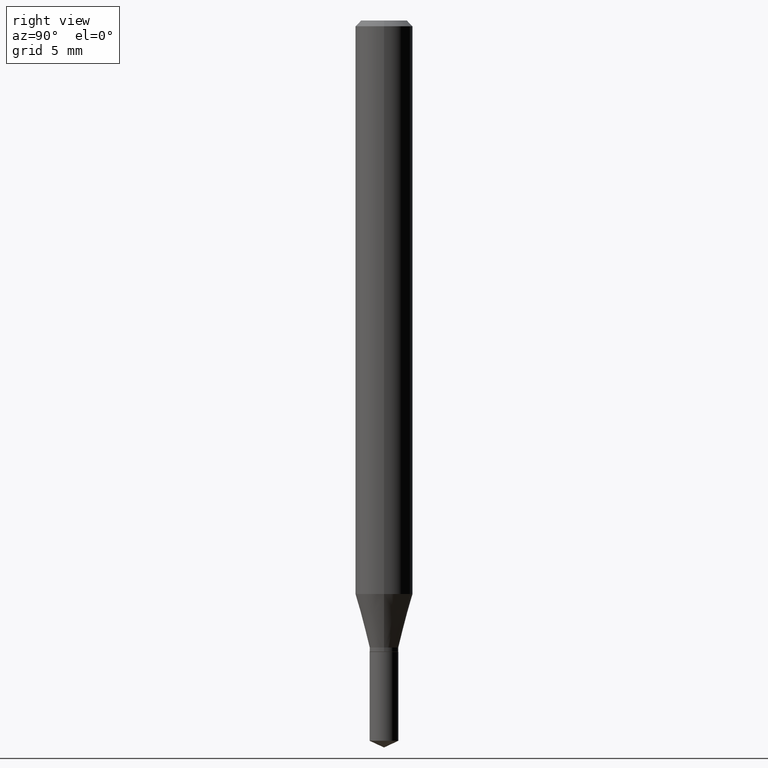
[diagram: clean part render]
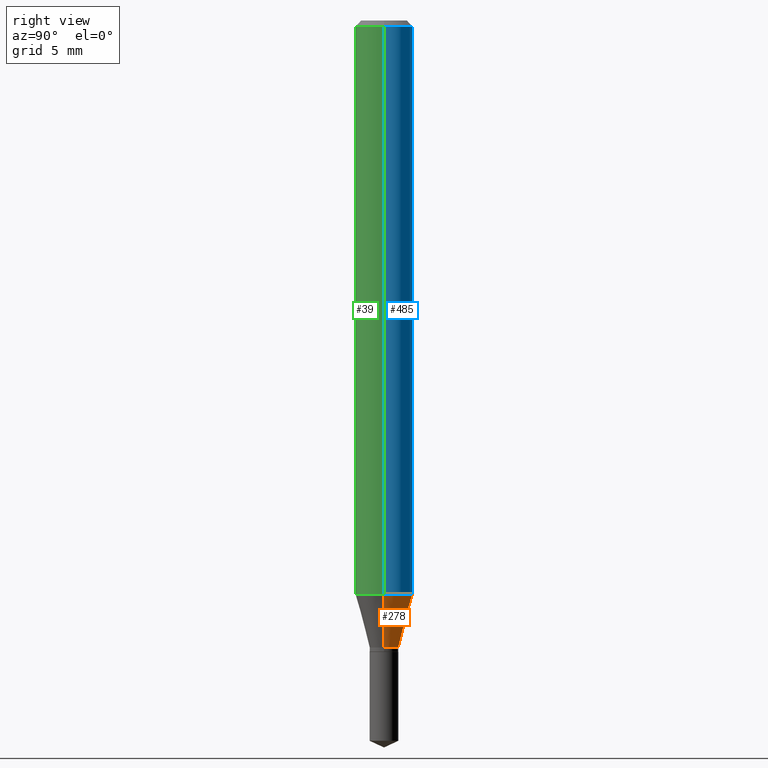
[diagram: same view with three faces highlighted in distinct colors, each labeled with its STEP entity id]
A machine part, right view with three faces highlighted in distinct colors.
Their STEP definitions:

[orange] entity #278 — the highlighted conical surface has half-angle 15 deg.
#13 = CIRCLE ( 'NONE', #93, 0.05905000000000014404 ) ;
#16 = CARTESIAN_POINT ( 'NONE',  ( -0.05905000000000014404, -3.701086506410853465E-15, -1.180204501176717713 ) ) ;
#18 = ORIENTED_EDGE ( 'NONE', *, *, #254, .F. ) ;
#20 = VECTOR ( 'NONE', #342, 39.37007874015747433 ) ;
#44 = AXIS2_PLACEMENT_3D ( 'NONE', #133, #358, #203 ) ;
#45 = CARTESIAN_POINT ( 'NONE',  ( 3.155388400620681599E-29, -4.505058371509310392E-15, -1.290300000000000002 ) ) ;
#48 = FACE_OUTER_BOUND ( 'NONE', #419, .T. ) ;
#93 = AXIS2_PLACEMENT_3D ( 'NONE', #297, #269, #452 ) ;
#100 = VERTEX_POINT ( 'NONE', #159 ) ;
#114 = VERTEX_POINT ( 'NONE', #272 ) ;
#118 = DIRECTION ( 'NONE',  ( -2.445468806185136597E-29, 3.491481338843145583E-15, 1.000000000000000000 ) ) ;
#133 = CARTESIAN_POINT ( 'NONE',  ( 3.155388400620681599E-29, -4.505058371509310392E-15, -1.290300000000000002 ) ) ;
#135 = VERTEX_POINT ( 'NONE', #175 ) ;
#151 = ORIENTED_EDGE ( 'NONE', *, *, #323, .F. ) ;
#159 = CARTESIAN_POINT ( 'NONE',  ( 0.05905000000000014404, -4.533005937994568667E-15, -1.180204501176717713 ) ) ;
#167 = ORIENTED_EDGE ( 'NONE', *, *, #449, .T. ) ;
#175 = CARTESIAN_POINT ( 'NONE',  ( -0.02954999999999998253, -4.309757214715342453E-15, -1.290300000000000002 ) ) ;
#190 = DIRECTION ( 'NONE',  ( 1.000000000000000000, -6.982962677686265922E-15, 0.000000000000000000 ) ) ;
#192 = LINE ( 'NONE', #220, #20 ) ;
#203 = DIRECTION ( 'NONE',  ( 1.000000000000000000, -6.982962677686265922E-15, 0.000000000000000000 ) ) ;
#220 = CARTESIAN_POINT ( 'NONE',  ( -0.02954999999999998253, -4.295092993092201035E-15, -1.290300000000000002 ) ) ;
#223 = CARTESIAN_POINT ( 'NONE',  ( 0.02954999999999998253, -4.711404918634939214E-15, -1.290300000000000002 ) ) ;
#228 = VECTOR ( 'NONE', #302, 39.37007874015747433 ) ;
#254 = EDGE_CURVE ( 'NONE', #114, #100, #382, .T. ) ;
#269 = DIRECTION ( 'NONE',  ( -2.445468806185136597E-29, 3.491481338843145583E-15, 1.000000000000000000 ) ) ;
#272 = CARTESIAN_POINT ( 'NONE',  ( 0.02954999999999998253, -4.711404918634939214E-15, -1.290300000000000002 ) ) ;
#278 = ADVANCED_FACE ( 'NONE', ( #48 ), #404, .T. ) ;
#285 = EDGE_CURVE ( 'NONE', #135, #434, #192, .T. ) ;
#294 = AXIS2_PLACEMENT_3D ( 'NONE', #45, #118, #190 ) ;
#297 = CARTESIAN_POINT ( 'NONE',  ( 2.886153292546952505E-29, -4.120661991877192958E-15, -1.180204501176717713 ) ) ;
#302 = DIRECTION ( 'NONE',  ( 0.2588190451025214611, 1.565188264969621573E-15, 0.9659258262890682012 ) ) ;
#323 = EDGE_CURVE ( 'NONE', #100, #434, #13, .T. ) ;
#342 = DIRECTION ( 'NONE',  ( -0.2588190451025214611, 5.211531920934551042E-15, 0.9659258262890682012 ) ) ;
#358 = DIRECTION ( 'NONE',  ( -2.445468806185136597E-29, 3.491481338843145583E-15, 1.000000000000000000 ) ) ;
#381 = CIRCLE ( 'NONE', #44, 0.02954999999999998253 ) ;
#382 = LINE ( 'NONE', #223, #228 ) ;
#404 = CONICAL_SURFACE ( 'NONE', #294, 0.02954999999999998253, 0.2617993877991501295 ) ;
#419 = EDGE_LOOP ( 'NONE', ( #167, #451, #151, #18 ) ) ;
#434 = VERTEX_POINT ( 'NONE', #16 ) ;
#449 = EDGE_CURVE ( 'NONE', #114, #135, #381, .T. ) ;
#451 = ORIENTED_EDGE ( 'NONE', *, *, #285, .T. ) ;
#452 = DIRECTION ( 'NONE',  ( 1.000000000000000000, -6.982962677686272233E-15, 0.000000000000000000 ) ) ;

[blue] entity #485 — the highlighted cylindrical surface (edge-blend (fillet) strip) has radius 1.4999 mm, axis along (-0, 0, 1).
#8 = EDGE_CURVE ( 'NONE', #100, #326, #79, .T. ) ;
#13 = CIRCLE ( 'NONE', #93, 0.05905000000000014404 ) ;
#14 = CARTESIAN_POINT ( 'NONE',  ( -0.05905000000000006771, 4.195754854663396409E-16, -2.904631170795525045E-30 ) ) ;
#16 = CARTESIAN_POINT ( 'NONE',  ( -0.05905000000000014404, -3.701086506410853465E-15, -1.180204501176717713 ) ) ;
#79 = LINE ( 'NONE', #231, #487 ) ;
#81 = DIRECTION ( 'NONE',  ( -2.445468806185136877E-29, 3.491481338843145188E-15, 1.000000000000000000 ) ) ;
#93 = AXIS2_PLACEMENT_3D ( 'NONE', #297, #269, #452 ) ;
#95 = CARTESIAN_POINT ( 'NONE',  ( 2.888098660104664204E-31, -4.123439461173780263E-17, -0.01181000000000007218 ) ) ;
#98 = DIRECTION ( 'NONE',  ( -2.445468806185136597E-29, 3.491481338843145583E-15, 1.000000000000000000 ) ) ;
#100 = VERTEX_POINT ( 'NONE', #159 ) ;
#103 = EDGE_CURVE ( 'NONE', #326, #238, #307, .T. ) ;
#116 = ORIENTED_EDGE ( 'NONE', *, *, #8, .F. ) ;
#159 = CARTESIAN_POINT ( 'NONE',  ( 0.05905000000000014404, -4.533005937994568667E-15, -1.180204501176717713 ) ) ;
#164 = DIRECTION ( 'NONE',  ( 1.000000000000000000, -6.982962677686266711E-15, 0.000000000000000000 ) ) ;
#184 = VECTOR ( 'NONE', #242, 39.37007874015748143 ) ;
#185 = CARTESIAN_POINT ( 'NONE',  ( 0.05904999999999999832, -4.535783407291118600E-16, -0.01181000000000007218 ) ) ;
#200 = FACE_OUTER_BOUND ( 'NONE', #400, .T. ) ;
#210 = CARTESIAN_POINT ( 'NONE',  ( -0.05904999999999999832, -1.661372707778124864E-15, -0.01181000000000007218 ) ) ;
#221 = AXIS2_PLACEMENT_3D ( 'NONE', #315, #98, #279 ) ;
#231 = CARTESIAN_POINT ( 'NONE',  ( 0.05905000000000006771, -4.123439461173745257E-16, 2.879382386107503723E-30 ) ) ;
#236 = DIRECTION ( 'NONE',  ( -2.445468806185136597E-29, 3.491481338843145583E-15, 1.000000000000000000 ) ) ;
#238 = VERTEX_POINT ( 'NONE', #210 ) ;
#242 = DIRECTION ( 'NONE',  ( -2.445468806185136877E-29, 3.491481338843145188E-15, 1.000000000000000000 ) ) ;
#269 = DIRECTION ( 'NONE',  ( -2.445468806185136597E-29, 3.491481338843145583E-15, 1.000000000000000000 ) ) ;
#279 = DIRECTION ( 'NONE',  ( 1.000000000000000000, -6.982962677686266711E-15, 4.876176775795936353E-29 ) ) ;
#297 = CARTESIAN_POINT ( 'NONE',  ( 2.886153292546952505E-29, -4.120661991877192958E-15, -1.180204501176717713 ) ) ;
#307 = CIRCLE ( 'NONE', #369, 0.05904999999999999832 ) ;
#315 = CARTESIAN_POINT ( 'NONE',  ( 0.000000000000000000, 0.000000000000000000, 0.000000000000000000 ) ) ;
#317 = ORIENTED_EDGE ( 'NONE', *, *, #399, .T. ) ;
#323 = EDGE_CURVE ( 'NONE', #100, #434, #13, .T. ) ;
#326 = VERTEX_POINT ( 'NONE', #185 ) ;
#330 = ORIENTED_EDGE ( 'NONE', *, *, #323, .T. ) ;
#355 = CYLINDRICAL_SURFACE ( 'NONE', #221, 0.05905000000000006771 ) ;
#357 = ORIENTED_EDGE ( 'NONE', *, *, #103, .F. ) ;
#369 = AXIS2_PLACEMENT_3D ( 'NONE', #95, #236, #164 ) ;
#399 = EDGE_CURVE ( 'NONE', #434, #238, #466, .T. ) ;
#400 = EDGE_LOOP ( 'NONE', ( #330, #317, #357, #116 ) ) ;
#434 = VERTEX_POINT ( 'NONE', #16 ) ;
#452 = DIRECTION ( 'NONE',  ( 1.000000000000000000, -6.982962677686272233E-15, 0.000000000000000000 ) ) ;
#466 = LINE ( 'NONE', #14, #184 ) ;
#485 = ADVANCED_FACE ( 'NONE', ( #200 ), #355, .T. ) ;
#487 = VECTOR ( 'NONE', #81, 39.37007874015748143 ) ;

[green] entity #39 — the highlighted cylindrical surface (edge-blend (fillet) strip) has radius 1.4999 mm, axis along (-0, 0, 1).
#8 = EDGE_CURVE ( 'NONE', #100, #326, #79, .T. ) ;
#9 = DIRECTION ( 'NONE',  ( -2.445468806185136597E-29, 3.491481338843145583E-15, 1.000000000000000000 ) ) ;
#14 = CARTESIAN_POINT ( 'NONE',  ( -0.05905000000000006771, 4.195754854663396409E-16, -2.904631170795525045E-30 ) ) ;
#16 = CARTESIAN_POINT ( 'NONE',  ( -0.05905000000000014404, -3.701086506410853465E-15, -1.180204501176717713 ) ) ;
#39 = ADVANCED_FACE ( 'NONE', ( #459 ), #49, .T. ) ;
#49 = CYLINDRICAL_SURFACE ( 'NONE', #92, 0.05905000000000006771 ) ;
#79 = LINE ( 'NONE', #231, #487 ) ;
#81 = DIRECTION ( 'NONE',  ( -2.445468806185136877E-29, 3.491481338843145188E-15, 1.000000000000000000 ) ) ;
#85 = CARTESIAN_POINT ( 'NONE',  ( 2.886153292546952505E-29, -4.120661991877192958E-15, -1.180204501176717713 ) ) ;
#92 = AXIS2_PLACEMENT_3D ( 'NONE', #157, #303, #298 ) ;
#100 = VERTEX_POINT ( 'NONE', #159 ) ;
#104 = EDGE_LOOP ( 'NONE', ( #367, #473, #425, #186 ) ) ;
#113 = CIRCLE ( 'NONE', #171, 0.05905000000000014404 ) ;
#129 = EDGE_CURVE ( 'NONE', #238, #326, #470, .T. ) ;
#140 = CARTESIAN_POINT ( 'NONE',  ( 2.888098660104664204E-31, -4.123439461173780263E-17, -0.01181000000000007218 ) ) ;
#157 = CARTESIAN_POINT ( 'NONE',  ( 0.000000000000000000, 0.000000000000000000, 0.000000000000000000 ) ) ;
#159 = CARTESIAN_POINT ( 'NONE',  ( 0.05905000000000014404, -4.533005937994568667E-15, -1.180204501176717713 ) ) ;
#171 = AXIS2_PLACEMENT_3D ( 'NONE', #85, #9, #458 ) ;
#184 = VECTOR ( 'NONE', #242, 39.37007874015748143 ) ;
#185 = CARTESIAN_POINT ( 'NONE',  ( 0.05904999999999999832, -4.535783407291118600E-16, -0.01181000000000007218 ) ) ;
#186 = ORIENTED_EDGE ( 'NONE', *, *, #129, .F. ) ;
#210 = CARTESIAN_POINT ( 'NONE',  ( -0.05904999999999999832, -1.661372707778124864E-15, -0.01181000000000007218 ) ) ;
#231 = CARTESIAN_POINT ( 'NONE',  ( 0.05905000000000006771, -4.123439461173745257E-16, 2.879382386107503723E-30 ) ) ;
#238 = VERTEX_POINT ( 'NONE', #210 ) ;
#241 = DIRECTION ( 'NONE',  ( -2.445468806185136597E-29, 3.491481338843145583E-15, 1.000000000000000000 ) ) ;
#242 = DIRECTION ( 'NONE',  ( -2.445468806185136877E-29, 3.491481338843145188E-15, 1.000000000000000000 ) ) ;
#249 = AXIS2_PLACEMENT_3D ( 'NONE', #140, #241, #428 ) ;
#263 = EDGE_CURVE ( 'NONE', #434, #100, #113, .T. ) ;
#298 = DIRECTION ( 'NONE',  ( 1.000000000000000000, -6.982962677686266711E-15, 4.876176775795936353E-29 ) ) ;
#303 = DIRECTION ( 'NONE',  ( -2.445468806185136597E-29, 3.491481338843145583E-15, 1.000000000000000000 ) ) ;
#326 = VERTEX_POINT ( 'NONE', #185 ) ;
#367 = ORIENTED_EDGE ( 'NONE', *, *, #399, .F. ) ;
#399 = EDGE_CURVE ( 'NONE', #434, #238, #466, .T. ) ;
#425 = ORIENTED_EDGE ( 'NONE', *, *, #8, .T. ) ;
#428 = DIRECTION ( 'NONE',  ( 1.000000000000000000, -6.982962677686266711E-15, 0.000000000000000000 ) ) ;
#434 = VERTEX_POINT ( 'NONE', #16 ) ;
#458 = DIRECTION ( 'NONE',  ( 1.000000000000000000, -6.982962677686272233E-15, 0.000000000000000000 ) ) ;
#459 = FACE_OUTER_BOUND ( 'NONE', #104, .T. ) ;
#466 = LINE ( 'NONE', #14, #184 ) ;
#470 = CIRCLE ( 'NONE', #249, 0.05904999999999999832 ) ;
#473 = ORIENTED_EDGE ( 'NONE', *, *, #263, .T. ) ;
#487 = VECTOR ( 'NONE', #81, 39.37007874015748143 ) ;